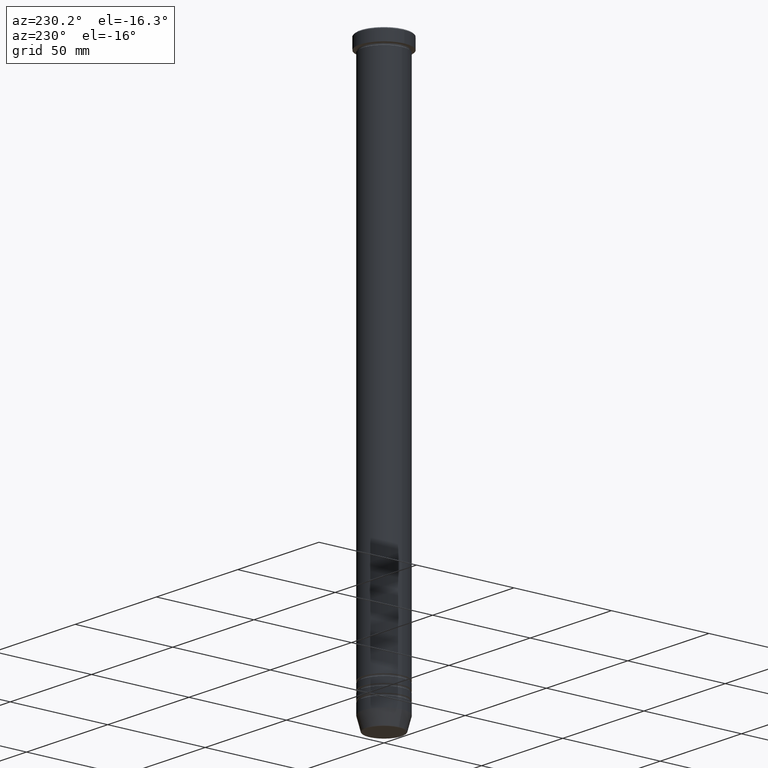
[diagram: clean part render]
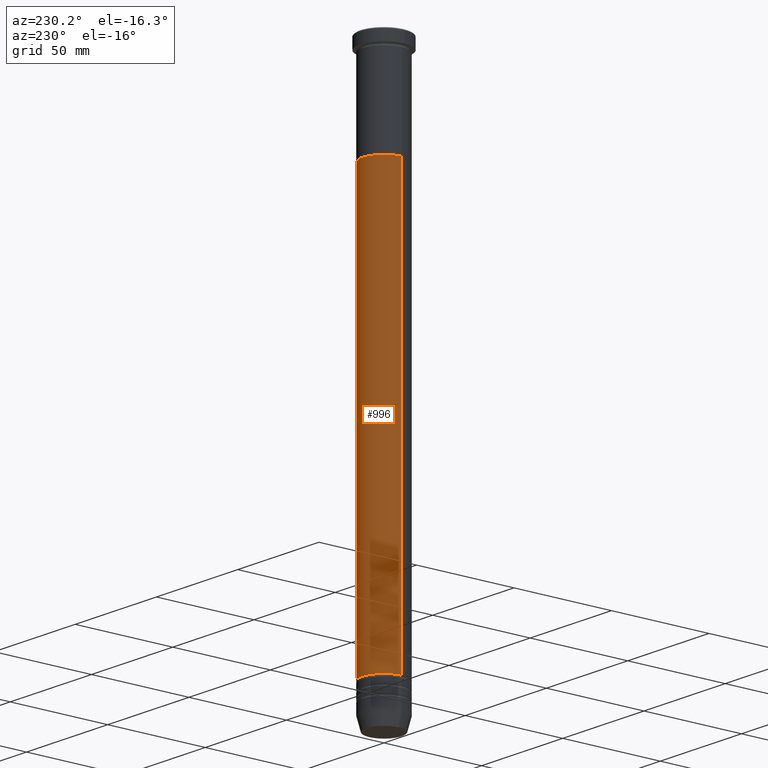
[diagram: same view with one face highlighted and labeled with its STEP entity id]
A machine part, auxiliary view. The second image highlights one B-rep face of the part: STEP entity #996.
In plain terms, the highlighted cylindrical surface (edge-blend (fillet) strip) has radius 11 mm, axis along (-0, -0, 1).
Its self-contained STEP definition (entity closure, byte-faithful):
#17 = EDGE_LOOP ( 'NONE', ( #1057, #343, #944, #644 ) ) ;
#23 = VECTOR ( 'NONE', #540, 1000.000000000000000 ) ;
#85 = CIRCLE ( 'NONE', #609, 11.00000000000000000 ) ;
#92 = VERTEX_POINT ( 'NONE', #574 ) ;
#174 = VECTOR ( 'NONE', #527, 1000.000000000000000 ) ;
#182 = CARTESIAN_POINT ( 'NONE',  ( -10.99999999999999645, 1.347111479062088010E-15, 0.000000000000000000 ) ) ;
#184 = CARTESIAN_POINT ( 'NONE',  ( 10.99999999999999467, 0.000000000000000000, -265.0000000000000000 ) ) ;
#209 = EDGE_CURVE ( 'NONE', #519, #92, #628, .T. ) ;
#219 = DIRECTION ( 'NONE',  ( -0.000000000000000000, -0.000000000000000000, 1.000000000000000000 ) ) ;
#221 = CIRCLE ( 'NONE', #817, 10.99999999999999467 ) ;
#236 = CARTESIAN_POINT ( 'NONE',  ( 10.99999999999999645, 0.000000000000000000, 0.000000000000000000 ) ) ;
#320 = DIRECTION ( 'NONE',  ( 1.000000000000000000, 0.000000000000000000, 0.000000000000000000 ) ) ;
#335 = AXIS2_PLACEMENT_3D ( 'NONE', #1007, #219, #833 ) ;
#343 = ORIENTED_EDGE ( 'NONE', *, *, #209, .T. ) ;
#344 = VERTEX_POINT ( 'NONE', #732 ) ;
#416 = EDGE_CURVE ( 'NONE', #344, #92, #85, .T. ) ;
#496 = DIRECTION ( 'NONE',  ( -0.000000000000000000, -0.000000000000000000, 1.000000000000000000 ) ) ;
#506 = LINE ( 'NONE', #236, #174 ) ;
#519 = VERTEX_POINT ( 'NONE', #687 ) ;
#520 = DIRECTION ( 'NONE',  ( 1.000000000000000000, 0.000000000000000000, 0.000000000000000000 ) ) ;
#527 = DIRECTION ( 'NONE',  ( -0.000000000000000000, -0.000000000000000000, 1.000000000000000000 ) ) ;
#540 = DIRECTION ( 'NONE',  ( -0.000000000000000000, -0.000000000000000000, 1.000000000000000000 ) ) ;
#574 = CARTESIAN_POINT ( 'NONE',  ( -10.99999999999999822, 1.347111479062088405E-15, -52.00000000000000000 ) ) ;
#588 = CARTESIAN_POINT ( 'NONE',  ( 0.000000000000000000, 0.000000000000000000, -265.0000000000000000 ) ) ;
#609 = AXIS2_PLACEMENT_3D ( 'NONE', #678, #496, #320 ) ;
#628 = LINE ( 'NONE', #182, #23 ) ;
#644 = ORIENTED_EDGE ( 'NONE', *, *, #706, .F. ) ;
#651 = FACE_OUTER_BOUND ( 'NONE', #17, .T. ) ;
#678 = CARTESIAN_POINT ( 'NONE',  ( 0.000000000000000000, 0.000000000000000000, -52.00000000000000000 ) ) ;
#687 = CARTESIAN_POINT ( 'NONE',  ( -10.99999999999999467, 1.347111479062087813E-15, -265.0000000000000000 ) ) ;
#706 = EDGE_CURVE ( 'NONE', #784, #344, #506, .T. ) ;
#732 = CARTESIAN_POINT ( 'NONE',  ( 11.00000000000000000, 0.000000000000000000, -52.00000000000000000 ) ) ;
#749 = CYLINDRICAL_SURFACE ( 'NONE', #335, 10.99999999999999645 ) ;
#784 = VERTEX_POINT ( 'NONE', #184 ) ;
#817 = AXIS2_PLACEMENT_3D ( 'NONE', #588, #863, #520 ) ;
#833 = DIRECTION ( 'NONE',  ( 1.000000000000000000, 0.000000000000000000, 0.000000000000000000 ) ) ;
#863 = DIRECTION ( 'NONE',  ( -0.000000000000000000, -0.000000000000000000, 1.000000000000000000 ) ) ;
#944 = ORIENTED_EDGE ( 'NONE', *, *, #416, .F. ) ;
#996 = ADVANCED_FACE ( 'NONE', ( #651 ), #749, .T. ) ;
#1007 = CARTESIAN_POINT ( 'NONE',  ( 0.000000000000000000, 0.000000000000000000, 0.000000000000000000 ) ) ;
#1054 = EDGE_CURVE ( 'NONE', #784, #519, #221, .T. ) ;
#1057 = ORIENTED_EDGE ( 'NONE', *, *, #1054, .T. ) ;